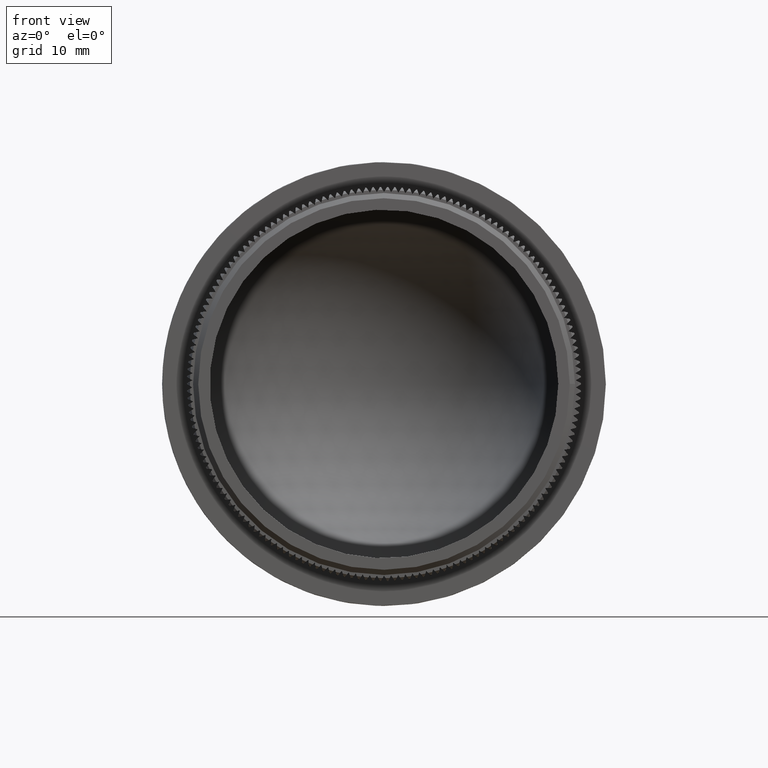
[diagram: clean part render]
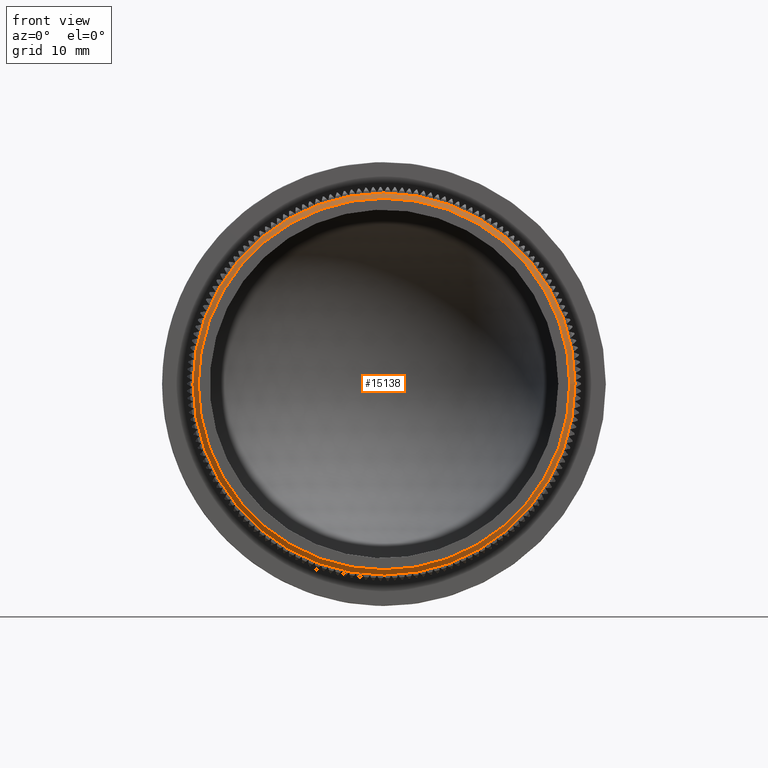
[diagram: same view with one face highlighted and labeled with its STEP entity id]
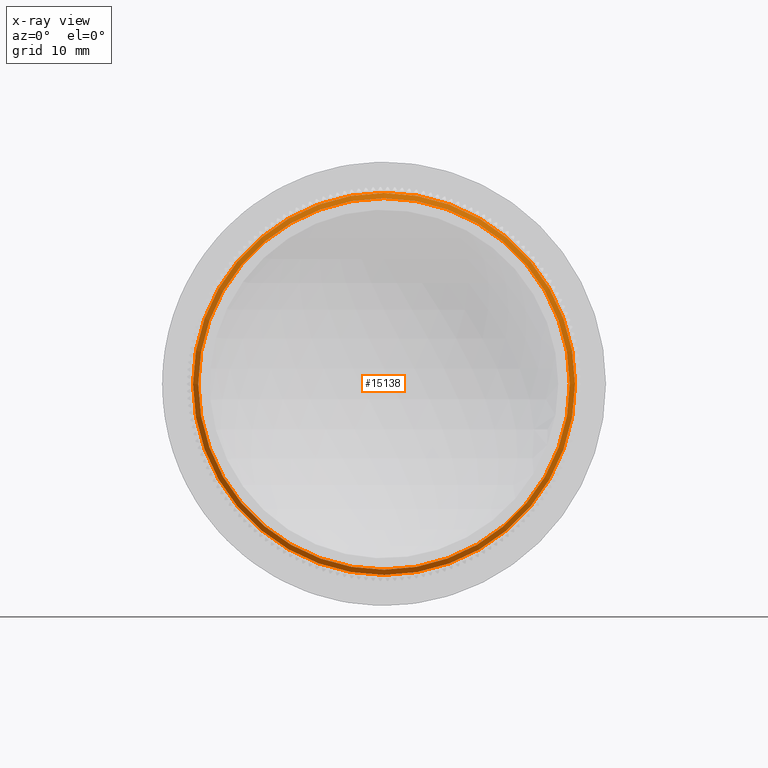
[diagram: x-ray of the same camera — body ghosted, the highlighted face saturated]
A machine part, front view. The second image highlights one B-rep face of the part: STEP entity #15138.
The next image is the same camera in x-ray: the body ghosted, the highlighted face saturated — about 0% of this face is hidden behind the body in this view.
In plain terms, the highlighted conical surface has half-angle 45 deg.
Its self-contained STEP definition (entity closure, byte-faithful):
#2354 = DIRECTION ( 'NONE',  ( 4.511395019478395320E-16, 1.000000000000000000, 0.000000000000000000 ) ) ;
#7219 = DIRECTION ( 'NONE',  ( 4.511395019478395320E-16, 1.000000000000000000, 0.000000000000000000 ) ) ;
#7487 = DIRECTION ( 'NONE',  ( 1.000000000000000000, -4.515033704597166057E-16, 0.000000000000000000 ) ) ;
#8854 = AXIS2_PLACEMENT_3D ( 'NONE', #16762, #7219, #7487 ) ;
#9234 = CARTESIAN_POINT ( 'NONE',  ( -1.452669196272041349E-14, 7.713180225100643264E-15, 0.000000000000000000 ) ) ;
#9365 = DIRECTION ( 'NONE',  ( -4.511395019478391376E-16, -1.000000000000000000, -0.000000000000000000 ) ) ;
#12638 = FACE_BOUND ( 'NONE', #34819, .T. ) ;
#15138 = ADVANCED_FACE ( 'NONE', ( #16951, #12638 ), #15962, .T. ) ;
#15962 = CONICAL_SURFACE ( 'NONE', #19264, 17.75000000000000000, 0.7853981633974621568 ) ;
#16762 = CARTESIAN_POINT ( 'NONE',  ( -1.430112221174649500E-14, 0.5000000000000073275, 0.000000000000000000 ) ) ;
#16951 = FACE_OUTER_BOUND ( 'NONE', #31254, .T. ) ;
#17551 = DIRECTION ( 'NONE',  ( -1.000000000000000000, 4.511395019478395320E-16, 0.000000000000000000 ) ) ;
#19264 = AXIS2_PLACEMENT_3D ( 'NONE', #33283, #2354, #17551 ) ;
#20055 = ORIENTED_EDGE ( 'NONE', *, *, #30737, .F. ) ;
#22467 = ORIENTED_EDGE ( 'NONE', *, *, #34898, .F. ) ;
#26805 = AXIS2_PLACEMENT_3D ( 'NONE', #9234, #9365, #31168 ) ;
#28176 = CARTESIAN_POINT ( 'NONE',  ( 18.25000000000000000, 0.4999999999999991673, 0.000000000000000000 ) ) ;
#28596 = VERTEX_POINT ( 'NONE', #37573 ) ;
#30737 = EDGE_CURVE ( 'NONE', #28596, #28596, #37766, .T. ) ;
#31168 = DIRECTION ( 'NONE',  ( 1.000000000000000000, -4.511395019478391376E-16, 0.000000000000000000 ) ) ;
#31254 = EDGE_LOOP ( 'NONE', ( #22467 ) ) ;
#33283 = CARTESIAN_POINT ( 'NONE',  ( -1.452669196272041349E-14, 6.938893903907228378E-15, 0.000000000000000000 ) ) ;
#33863 = VERTEX_POINT ( 'NONE', #28176 ) ;
#34819 = EDGE_LOOP ( 'NONE', ( #20055 ) ) ;
#34898 = EDGE_CURVE ( 'NONE', #33863, #33863, #39037, .T. ) ;
#37573 = CARTESIAN_POINT ( 'NONE',  ( 17.74999999999998579, -2.945459344735001468E-16, 0.000000000000000000 ) ) ;
#37766 = CIRCLE ( 'NONE', #26805, 17.75000000000000000 ) ;
#39037 = CIRCLE ( 'NONE', #8854, 18.25000000000001421 ) ;